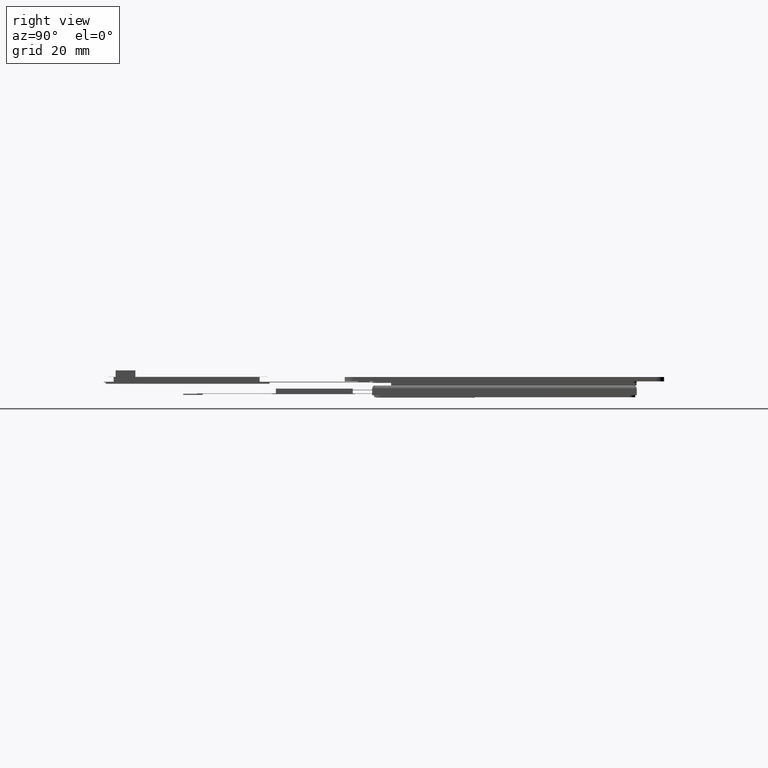
[diagram: clean part render]
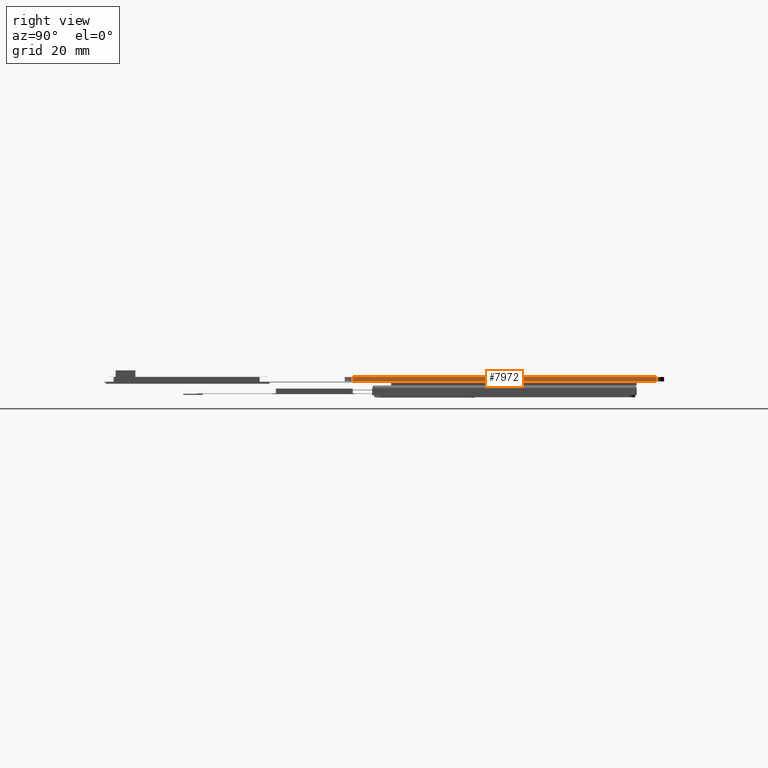
[diagram: same view with one face highlighted and labeled with its STEP entity id]
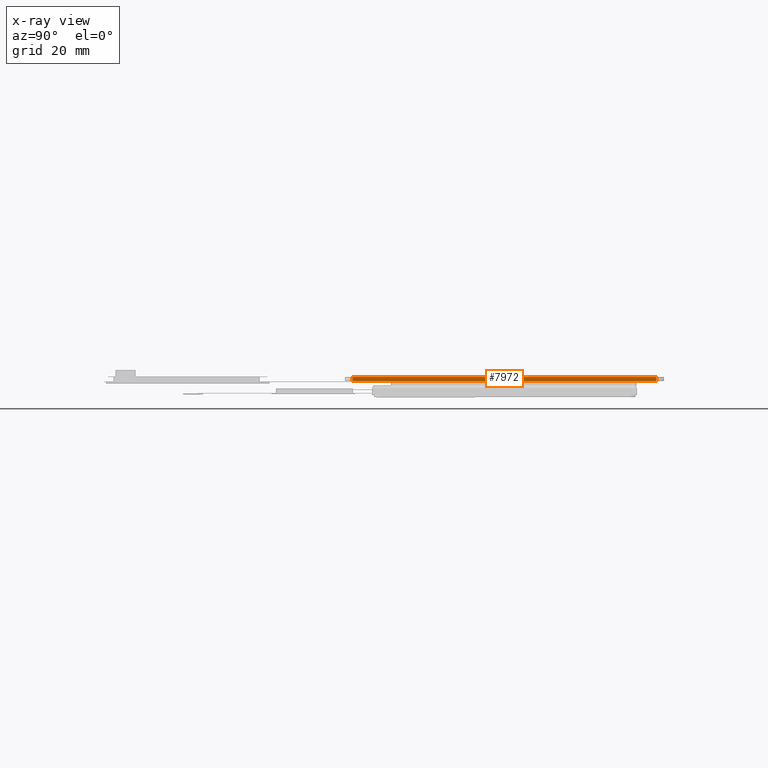
[diagram: x-ray of the same camera — body ghosted, the highlighted face saturated]
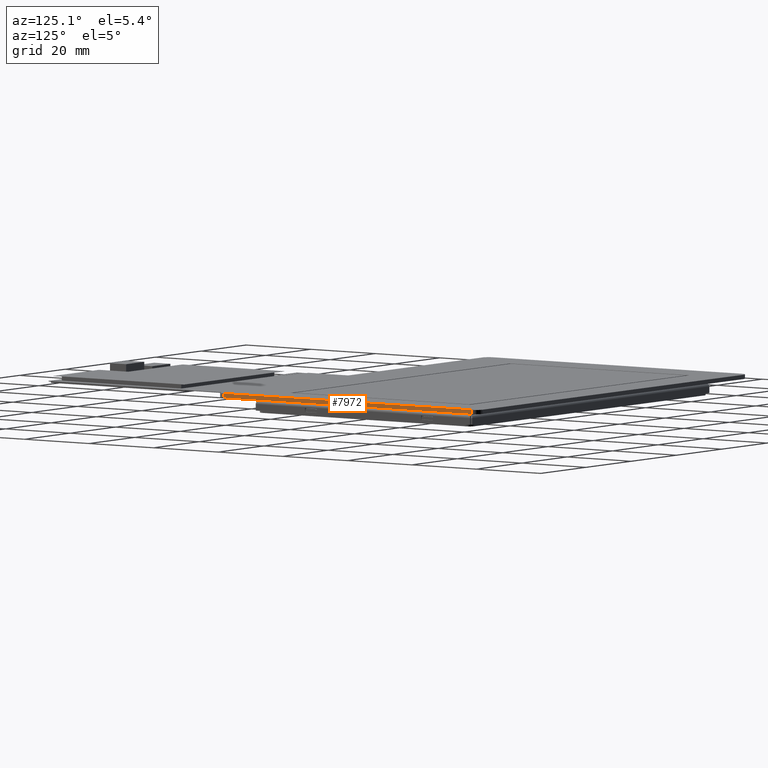
[diagram: same view with one face highlighted and labeled with its STEP entity id]
A machine part, right view. The second image highlights one B-rep face of the part: STEP entity #7972.
The next image is the same camera in x-ray: the body ghosted, the highlighted face saturated — about 0% of this face is hidden behind the body in this view.
A second angle (auxiliary view) of the same face is appended — the face is thin or edge-on in the first view.
In plain terms, the highlighted planar face has unit normal (-1, -0, 0).
Its self-contained STEP definition (entity closure, byte-faithful):
#111=PLANE('',#8448);
#491=FACE_OUTER_BOUND('',#922,.T.);
#922=EDGE_LOOP('',(#5753,#5754,#5755,#5756));
#1393=LINE('',#11132,#2471);
#1439=LINE('',#11243,#2517);
#1446=LINE('',#11258,#2524);
#1447=LINE('',#11260,#2525);
#2471=VECTOR('',#9035,77.);
#2517=VECTOR('',#9121,77.);
#2524=VECTOR('',#9142,1.1);
#2525=VECTOR('',#9145,1.1);
#3622=VERTEX_POINT('',#11129);
#3623=VERTEX_POINT('',#11131);
#3667=VERTEX_POINT('',#11240);
#3668=VERTEX_POINT('',#11242);
#4415=EDGE_CURVE('',#3622,#3623,#1393,.T.);
#4470=EDGE_CURVE('',#3667,#3668,#1439,.T.);
#4478=EDGE_CURVE('',#3623,#3667,#1446,.T.);
#4479=EDGE_CURVE('',#3668,#3622,#1447,.T.);
#5753=ORIENTED_EDGE('',*,*,#4478,.F.);
#5754=ORIENTED_EDGE('',*,*,#4415,.F.);
#5755=ORIENTED_EDGE('',*,*,#4479,.F.);
#5756=ORIENTED_EDGE('',*,*,#4470,.F.);
#7972=ADVANCED_FACE('',(#491),#111,.F.);
#8448=AXIS2_PLACEMENT_3D('',#11259,#9143,#9144);
#9035=DIRECTION('',(1.08226954829212E-15,-1.,0.));
#9121=DIRECTION('',(-1.08226954829212E-15,1.,0.));
#9142=DIRECTION('',(0.,0.,1.));
#9143=DIRECTION('center_axis',(-1.,-1.08226954829212E-15,0.));
#9144=DIRECTION('ref_axis',(0.,0.,1.));
#9145=DIRECTION('',(0.,0.,-1.));
#11129=CARTESIAN_POINT('',(59.4999999999986,36.1300000000015,-1.09999999999999));
#11131=CARTESIAN_POINT('',(59.4999999999987,-40.8699999999985,-1.09999999999999));
#11132=CARTESIAN_POINT('',(59.4999999999986,36.1300000000015,-1.09999999999999));
#11240=CARTESIAN_POINT('',(59.4999999999987,-40.8699999999985,0.));
#11242=CARTESIAN_POINT('',(59.4999999999986,36.1300000000015,0.));
#11243=CARTESIAN_POINT('',(59.4999999999987,-40.8699999999985,0.));
#11258=CARTESIAN_POINT('',(59.4999999999987,-40.8699999999985,-1.09999999999999));
#11259=CARTESIAN_POINT('Origin',(59.4999999999987,-40.8699999999985,-0.549999999999997));
#11260=CARTESIAN_POINT('',(59.4999999999986,36.1300000000015,0.));